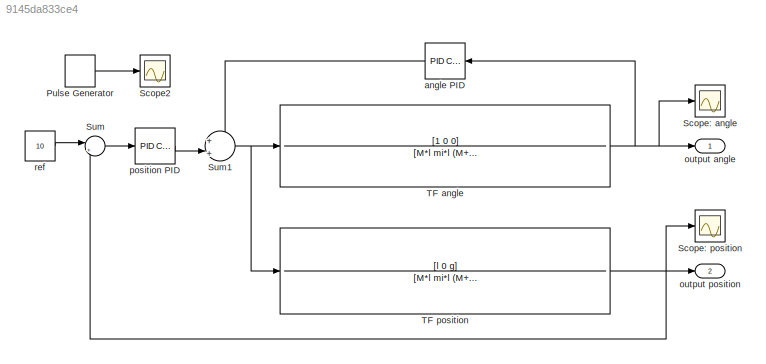
MODEL slx_9145da833ce4
KIND model
CONFIG AbsTol = auto
CONFIG EnableMultiTasking = off
CONFIG FixedStep = auto
CONFIG MaxStep = auto
CONFIG MinStep = auto
CONFIG RelTol = 1e-3
CONFIG SampleTimeConstraint = Unconstrained
CONFIG SolverName = VariableStepAuto
CONFIG StartTime = 0.0
CONFIG StopTime = 10
BLOCK [DiscretePulseGenerator] Pulse Generator
  Amplitude = 10
  Period = 100
  PhaseDelay = 0.1
  PulseType = Time based
  PulseWidth = 0.001
BLOCK [Scope] Scope2
  Floating = off
  NumInputPorts = 1
  ScopeSpecificationString = Simulink.scopes.TimeScopeBlockCfg('CurrentConfiguration', extmgr.ConfigurationSet(extmgr.Configuration('Core','General UI',true),extmgr.Configuration('Core','Source UI',true),extmgr.Configuration('Sources','WiredSimulink',true,'DataLoggingVariableName','ScopeData2'),extmgr.Configuration('Visuals','Time Domain',true,'SerializedDisplays',{struct('MinYLimReal','-5487.15875','MaxYLimReal','5505.98065'...<+1482ch>
BLOCK [Scope] Scope: angle
  Floating = off
  NumInputPorts = 1
  ScopeSpecificationString = Simulink.scopes.TimeScopeBlockCfg('CurrentConfiguration', extmgr.ConfigurationSet(extmgr.Configuration('Core','General UI',true),extmgr.Configuration('Core','Source UI',true),extmgr.Configuration('Sources','WiredSimulink',true),extmgr.Configuration('Visuals','Time Domain',true,'SerializedDisplays',{struct('MinYLimReal','-8.87093','MaxYLimReal','9.88164','YLabelReal','','MinYLimMag','0.00000','MaxY...<+1439ch>
BLOCK [Scope] Scope: position
  Floating = off
  NumInputPorts = 1
  ScopeSpecificationString = Simulink.scopes.TimeScopeBlockCfg('CurrentConfiguration', extmgr.ConfigurationSet(extmgr.Configuration('Core','General UI',true),extmgr.Configuration('Core','Source UI',true),extmgr.Configuration('Sources','WiredSimulink',true,'DataLoggingVariableName','ScopeData1'),extmgr.Configuration('Visuals','Time Domain',true,'SerializedDisplays',{struct('MinYLimReal','-1.2435','MaxYLimReal','11.19154','YLab...<+1483ch>
BLOCK [Sum] Sum
  Inputs = |+-
BLOCK [Sum] Sum1
  Inputs = +|+||
BLOCK [TransferFcn] TF angle
  Denominator = [M*l mi*l (M+m)*g mi*g 0]
  Numerator = [1 0 0]
BLOCK [TransferFcn] TF position
  Denominator = [M*l mi*l (M+m)*g mi*g 0]
  Numerator = [l 0 g]
BLOCK [Reference] angle PID  REF=slpidlib/PID Controller
  LibrarySourceBlock = simulink/Continuous/PID Controller
  SourceBlock = slpidlib/PID Controller
  SourceType = PID 1dof
BLOCK [Outport] output angle
BLOCK [Outport] output position
  Port = 2
BLOCK [Reference] position PID  REF=slpidlib/PID Controller
  LibrarySourceBlock = simulink/Continuous/PID Controller
  SourceBlock = slpidlib/PID Controller
  SourceType = PID 1dof
BLOCK [Constant] ref
  Value = 10
LINE Pulse Generator:1 -> Scope2:1
NET Sum1:1 -> TF angle:1, TF position:1
LINE Sum:1 -> position PID:1
NET TF angle:1 -> Scope: angle:1, angle PID:1, output angle:1
NET TF position:1 -> Scope: position:1, Sum:2, output position:1
LINE angle PID:1 -> Sum1:1
LINE position PID:1 -> Sum1:2
LINE ref:1 -> Sum:1
note: NET lines group one-source signal fan-out (src -> all destinations, sorted); 1:1 wires keep LINE
